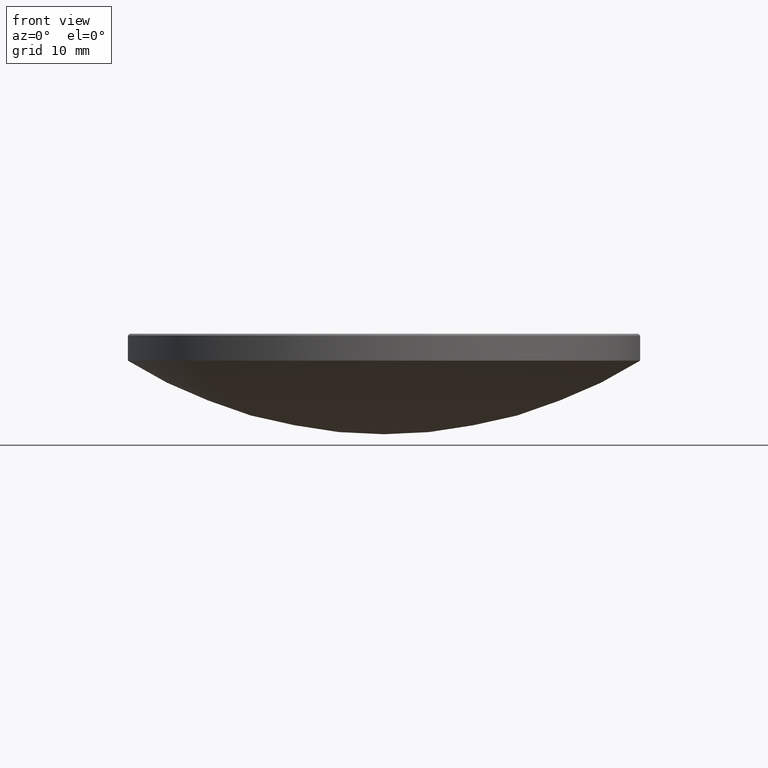
[diagram: clean part render]
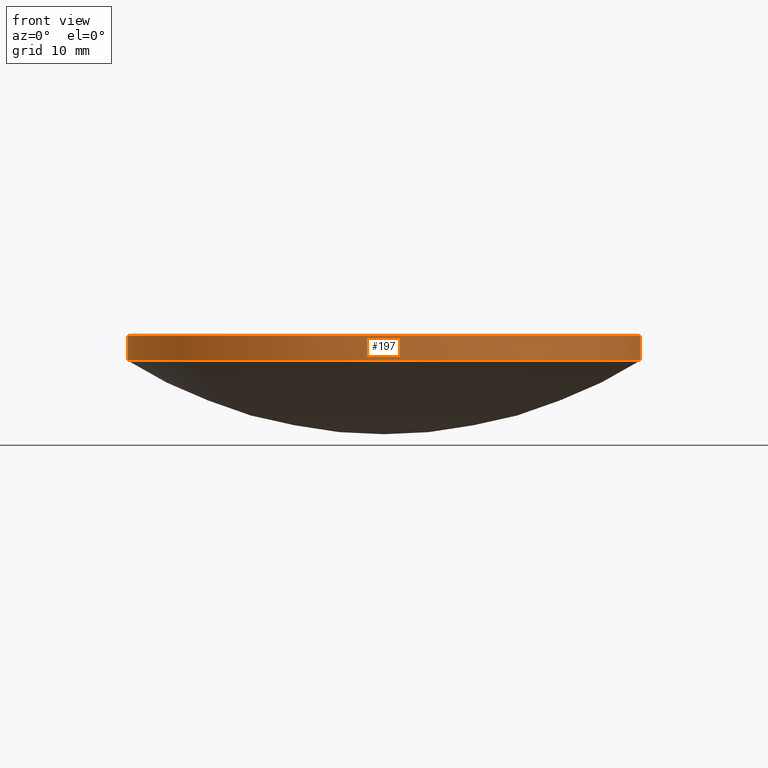
[diagram: same view with one face highlighted and labeled with its STEP entity id]
A machine part, front view. The second image highlights one B-rep face of the part: STEP entity #197.
In plain terms, the highlighted cylindrical surface (partial cylindrical patch) has radius 25.4 mm, axis along (-0, -0, -1).
Its self-contained STEP definition (entity closure, byte-faithful):
#3 = VECTOR ( 'NONE', #159, 1000.000000000000000 ) ;
#12 = VERTEX_POINT ( 'NONE', #98 ) ;
#16 = LINE ( 'NONE', #64, #151 ) ;
#19 = VERTEX_POINT ( 'NONE', #184 ) ;
#25 = EDGE_CURVE ( 'NONE', #104, #279, #136, .T. ) ;
#28 = CARTESIAN_POINT ( 'NONE',  ( -25.39999999999999858, 0.000000000000000000, 20.00000000000000000 ) ) ;
#30 = EDGE_CURVE ( 'NONE', #19, #12, #16, .T. ) ;
#34 = DIRECTION ( 'NONE',  ( -0.000000000000000000, -0.000000000000000000, -1.000000000000000000 ) ) ;
#36 = CIRCLE ( 'NONE', #132, 25.39999999999999858 ) ;
#52 = CARTESIAN_POINT ( 'NONE',  ( 0.000000000000000000, 0.000000000000000000, 20.00000000000000000 ) ) ;
#64 = CARTESIAN_POINT ( 'NONE',  ( 25.39999999999999858, 3.110602869834276865E-15, 20.00000000000000000 ) ) ;
#74 = DIRECTION ( 'NONE',  ( -0.000000000000000000, -0.000000000000000000, 1.000000000000000000 ) ) ;
#83 = VERTEX_POINT ( 'NONE', #235 ) ;
#93 = DIRECTION ( 'NONE',  ( 0.000000000000000000, 0.000000000000000000, -1.000000000000000000 ) ) ;
#98 = CARTESIAN_POINT ( 'NONE',  ( 25.39999999999999503, 3.110602869834276471E-15, 13.00000000000000000 ) ) ;
#104 = VERTEX_POINT ( 'NONE', #213 ) ;
#105 = AXIS2_PLACEMENT_3D ( 'NONE', #252, #230, #112 ) ;
#107 = AXIS2_PLACEMENT_3D ( 'NONE', #187, #74, #208 ) ;
#112 = DIRECTION ( 'NONE',  ( 1.000000000000000000, 0.000000000000000000, 0.000000000000000000 ) ) ;
#115 = CARTESIAN_POINT ( 'NONE',  ( 0.000000000000000000, 0.000000000000000000, 15.49999999999997158 ) ) ;
#120 = EDGE_LOOP ( 'NONE', ( #270, #171, #150, #192, #163 ) ) ;
#121 = CARTESIAN_POINT ( 'NONE',  ( -3.110602869834276865E-15, -25.39999999999999858, 12.99999999999999822 ) ) ;
#125 = DIRECTION ( 'NONE',  ( -0.000000000000000000, -0.000000000000000000, -1.000000000000000000 ) ) ;
#132 = AXIS2_PLACEMENT_3D ( 'NONE', #115, #93, #145 ) ;
#136 = CIRCLE ( 'NONE', #107, 25.39999999999999503 ) ;
#145 = DIRECTION ( 'NONE',  ( 1.000000000000000000, 0.000000000000000000, 0.000000000000000000 ) ) ;
#150 = ORIENTED_EDGE ( 'NONE', *, *, #176, .T. ) ;
#151 = VECTOR ( 'NONE', #125, 1000.000000000000000 ) ;
#159 = DIRECTION ( 'NONE',  ( -0.000000000000000000, -0.000000000000000000, -1.000000000000000000 ) ) ;
#162 = DIRECTION ( 'NONE',  ( -1.000000000000000000, 0.000000000000000000, 0.000000000000000000 ) ) ;
#163 = ORIENTED_EDGE ( 'NONE', *, *, #203, .T. ) ;
#169 = CIRCLE ( 'NONE', #105, 25.39999999999999503 ) ;
#171 = ORIENTED_EDGE ( 'NONE', *, *, #181, .T. ) ;
#176 = EDGE_CURVE ( 'NONE', #83, #104, #183, .T. ) ;
#181 = EDGE_CURVE ( 'NONE', #19, #83, #36, .T. ) ;
#182 = CYLINDRICAL_SURFACE ( 'NONE', #228, 25.39999999999999858 ) ;
#183 = LINE ( 'NONE', #28, #3 ) ;
#184 = CARTESIAN_POINT ( 'NONE',  ( 25.39999999999999858, 3.110602869834276865E-15, 15.49999999999997158 ) ) ;
#186 = FACE_OUTER_BOUND ( 'NONE', #120, .T. ) ;
#187 = CARTESIAN_POINT ( 'NONE',  ( 0.000000000000000000, 0.000000000000000000, 13.00000000000000000 ) ) ;
#192 = ORIENTED_EDGE ( 'NONE', *, *, #25, .T. ) ;
#197 = ADVANCED_FACE ( 'NONE', ( #186 ), #182, .T. ) ;
#203 = EDGE_CURVE ( 'NONE', #279, #12, #169, .T. ) ;
#208 = DIRECTION ( 'NONE',  ( 1.000000000000000000, 0.000000000000000000, 0.000000000000000000 ) ) ;
#213 = CARTESIAN_POINT ( 'NONE',  ( -25.39999999999999503, 0.000000000000000000, 13.00000000000000000 ) ) ;
#228 = AXIS2_PLACEMENT_3D ( 'NONE', #52, #34, #162 ) ;
#230 = DIRECTION ( 'NONE',  ( -0.000000000000000000, -0.000000000000000000, 1.000000000000000000 ) ) ;
#235 = CARTESIAN_POINT ( 'NONE',  ( -25.39999999999999858, 0.000000000000000000, 15.49999999999997158 ) ) ;
#252 = CARTESIAN_POINT ( 'NONE',  ( 0.000000000000000000, 0.000000000000000000, 13.00000000000000000 ) ) ;
#270 = ORIENTED_EDGE ( 'NONE', *, *, #30, .F. ) ;
#279 = VERTEX_POINT ( 'NONE', #121 ) ;